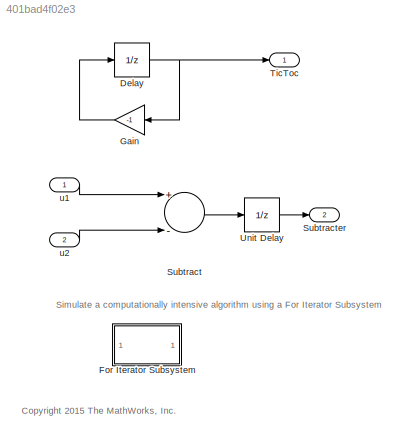
MODEL slx_401bad4f02e3
KIND model
CONFIG AbsTol = auto
CONFIG EnableMultiTasking = on
CONFIG FixedStep = .2
CONFIG MaxStep = auto
CONFIG MinStep = auto
CONFIG RelTol = 1e-3
CONFIG SampleTimeConstraint = Unconstrained
CONFIG Solver = FixedStepDiscrete
CONFIG SolverName = FixedStepDiscrete
CONFIG StartTime = 0.0
CONFIG StopTime = 100
BLOCK [UnitDelay] Delay
  InitialCondition = 1
  SampleTime = .4
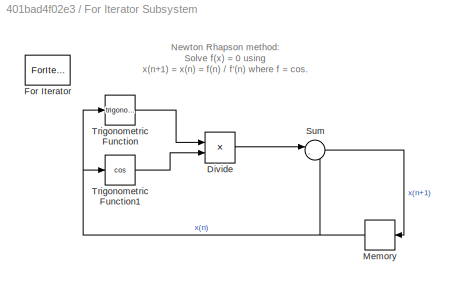
BLOCK [SubSystem] For Iterator Subsystem
  Ports = []
  RequestExecContextInheritance = off
  TreatAsAtomicUnit = on
  Variant = off
BLOCK [Product] For Iterator Subsystem/Divide
  InputSameDT = off
  Inputs = */
  OutDataTypeStr = Inherit: Inherit via internal rule
  Ports = [2, 1]
  RndMeth = Floor
  SaturateOnIntegerOverflow = off
BLOCK [ForIterator] For Iterator Subsystem/For Iterator
  IterationLimit = nIter
  Ports = []
  ShowIterationPort = off
BLOCK [Memory] For Iterator Subsystem/Memory
  InheritSampleTime = on
BLOCK [Sum] For Iterator Subsystem/Sum
  IconShape = round
  InputSameDT = off
  Inputs = |-+
  OutDataTypeStr = Inherit: Inherit via internal rule
  Ports = [2, 1]
  SaturateOnIntegerOverflow = off
BLOCK [Trigonometry] For Iterator Subsystem/Trigonometric Function
  Ports = [1, 1]
BLOCK [Trigonometry] For Iterator Subsystem/Trigonometric Function1
  Operator = cos
  Ports = [1, 1]
BLOCK [Gain] Gain
  Gain = -1
  OutDataTypeStr = fixdt(1,8,0)
  ParamDataTypeStr = Inherit: Inherit via internal rule
  SaturateOnIntegerOverflow = off
BLOCK [Sum] Subtract
  InputSameDT = off
  Inputs = +-
  OutDataTypeStr = Inherit: Inherit via internal rule
  Ports = [2, 1]
  SaturateOnIntegerOverflow = off
BLOCK [Outport] Subtracter
  IconDisplay = Port number
  InitialOutput = 0
  Port = 2
BLOCK [Outport] TicToc
  IconDisplay = Port number
  InitialOutput = 0
BLOCK [UnitDelay] Unit Delay
  InputProcessing = Elements as channels (sample based)
  SampleTime = -1
BLOCK [Inport] u1
  IconDisplay = Port number
  SampleTime = .2
BLOCK [Inport] u2
  IconDisplay = Port number
  Port = 2
ANNOTATION (root): <copyright redacted>
ANNOTATION (root): Simulate a computationally intensive algorithm using a For Iterator Subsystem
ANNOTATION For Iterator Subsystem: Newton Rhapson method : Solve f(x) = 0 using x(n+1) = x(n) = f(n) / f'(n) where f = cos.
NET Delay:1 -> Gain:1, TicToc:1
LINE For Iterator Subsystem/Divide:1 -> For Iterator Subsystem/Sum:1
NET For Iterator Subsystem/Memory:1 -> For Iterator Subsystem/Sum:2, For Iterator Subsystem/Trigonometric Function1:1, For Iterator Subsystem/Trigonometric Function:1
LINE For Iterator Subsystem/Sum:1 -> For Iterator Subsystem/Memory:1
LINE For Iterator Subsystem/Trigonometric Function1:1 -> For Iterator Subsystem/Divide:2
LINE For Iterator Subsystem/Trigonometric Function:1 -> For Iterator Subsystem/Divide:1
LINE Gain:1 -> Delay:1
LINE Subtract:1 -> Unit Delay:1
LINE Unit Delay:1 -> Subtracter:1
LINE u1:1 -> Subtract:1
LINE u2:1 -> Subtract:2
note: NET lines group one-source signal fan-out (src -> all destinations, sorted); 1:1 wires keep LINE
